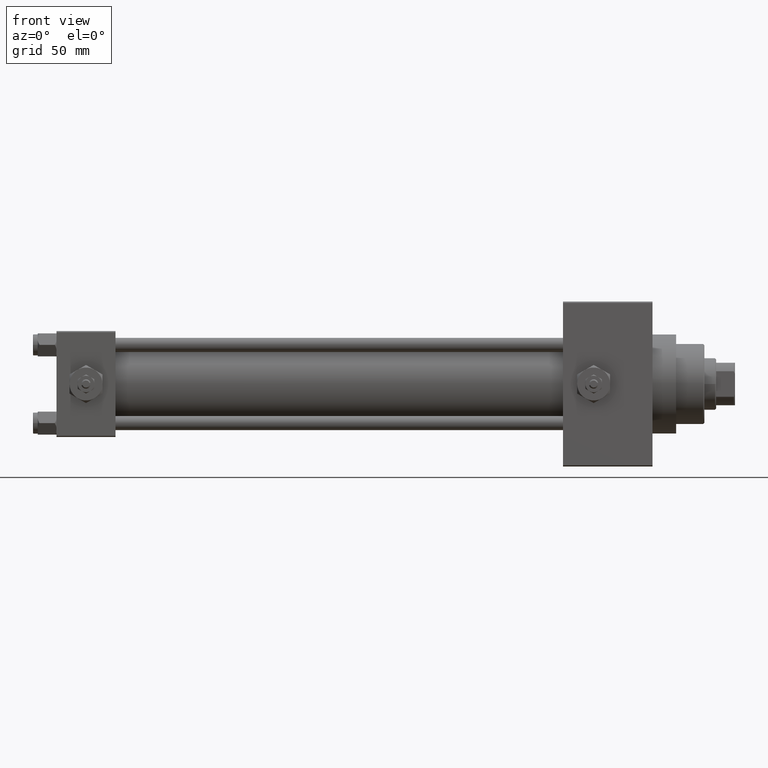
[diagram: clean part render]
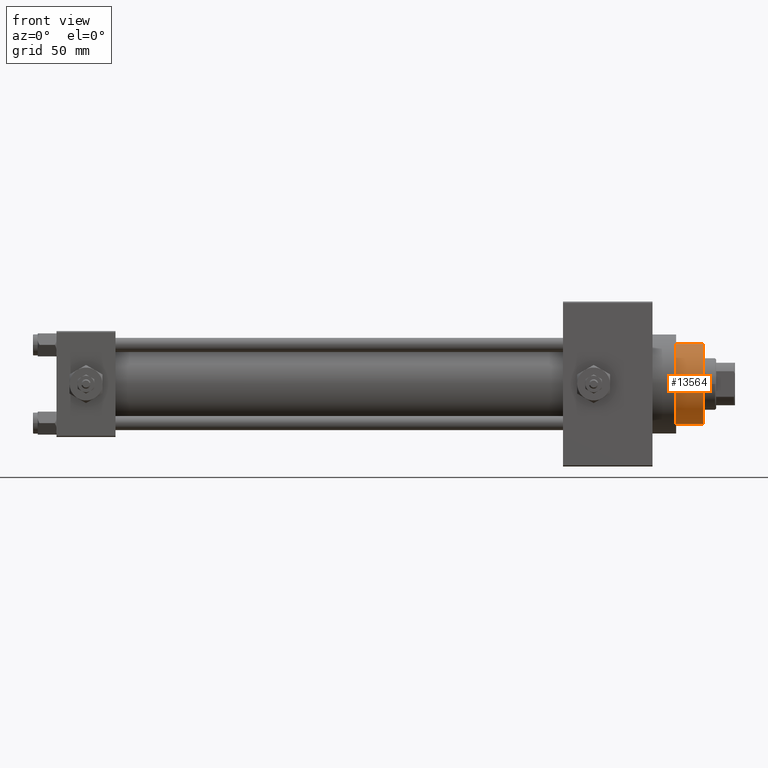
[diagram: same view with one face highlighted and labeled with its STEP entity id]
A machine part, front view. The second image highlights one B-rep face of the part: STEP entity #13564.
In plain terms, the highlighted cylindrical surface (partial cylindrical patch) has radius 17 mm, axis along (-1, 0, 0).
Its self-contained STEP definition (entity closure, byte-faithful):
#1362 = CARTESIAN_POINT ( 'NONE',  ( 0.000000000000000000, 0.000000000000000000, 54.76000000000001222 ) ) ;
#1388 = ORIENTED_EDGE ( 'NONE', *, *, #29258, .F. ) ;
#3139 = ORIENTED_EDGE ( 'NONE', *, *, #15464, .T. ) ;
#6447 = LINE ( 'NONE', #13409, #36582 ) ;
#6567 = CARTESIAN_POINT ( 'NONE',  ( 17.00000000000000000, 2.081899558550500280E-15, 55.26000000000000512 ) ) ;
#8528 = EDGE_CURVE ( 'NONE', #38916, #42596, #39174, .T. ) ;
#10540 = DIRECTION ( 'NONE',  ( -0.000000000000000000, -0.000000000000000000, -1.000000000000000000 ) ) ;
#11785 = DIRECTION ( 'NONE',  ( -0.000000000000000000, -0.000000000000000000, -1.000000000000000000 ) ) ;
#11865 = CARTESIAN_POINT ( 'NONE',  ( 0.000000000000000000, 0.000000000000000000, 43.25999999999999801 ) ) ;
#13003 = DIRECTION ( 'NONE',  ( 0.000000000000000000, 0.000000000000000000, -1.000000000000000000 ) ) ;
#13384 = EDGE_CURVE ( 'NONE', #42596, #41409, #17986, .T. ) ;
#13409 = CARTESIAN_POINT ( 'NONE',  ( -17.00000000000000000, 0.000000000000000000, 55.26000000000000512 ) ) ;
#13564 = ADVANCED_FACE ( 'NONE', ( #15496 ), #46043, .T. ) ;
#15464 = EDGE_CURVE ( 'NONE', #41409, #25181, #32969, .T. ) ;
#15496 = FACE_OUTER_BOUND ( 'NONE', #41815, .T. ) ;
#17218 = CARTESIAN_POINT ( 'NONE',  ( 17.00000000000000000, 2.081899558550500280E-15, 43.25999999999999801 ) ) ;
#17406 = CARTESIAN_POINT ( 'NONE',  ( -17.00000000000000000, 0.000000000000000000, 54.76000000000001222 ) ) ;
#17861 = DIRECTION ( 'NONE',  ( -0.000000000000000000, -0.000000000000000000, -1.000000000000000000 ) ) ;
#17986 = LINE ( 'NONE', #6567, #25081 ) ;
#19293 = DIRECTION ( 'NONE',  ( 0.000000000000000000, 0.000000000000000000, 1.000000000000000000 ) ) ;
#19706 = CARTESIAN_POINT ( 'NONE',  ( 0.000000000000000000, 0.000000000000000000, 55.26000000000000512 ) ) ;
#19716 = DIRECTION ( 'NONE',  ( 1.000000000000000000, 0.000000000000000000, 0.000000000000000000 ) ) ;
#20028 = DIRECTION ( 'NONE',  ( 1.000000000000000000, 0.000000000000000000, 0.000000000000000000 ) ) ;
#25081 = VECTOR ( 'NONE', #10540, 1000.000000000000000 ) ;
#25181 = VERTEX_POINT ( 'NONE', #47582 ) ;
#26440 = DIRECTION ( 'NONE',  ( -1.000000000000000000, 0.000000000000000000, 0.000000000000000000 ) ) ;
#29258 = EDGE_CURVE ( 'NONE', #38916, #25181, #6447, .T. ) ;
#31059 = ORIENTED_EDGE ( 'NONE', *, *, #8528, .T. ) ;
#31460 = AXIS2_PLACEMENT_3D ( 'NONE', #19706, #11785, #26440 ) ;
#32969 = CIRCLE ( 'NONE', #36936, 17.00000000000000000 ) ;
#34631 = CARTESIAN_POINT ( 'NONE',  ( 17.00000000000000000, 2.081899558550500280E-15, 54.76000000000001222 ) ) ;
#36582 = VECTOR ( 'NONE', #17861, 1000.000000000000000 ) ;
#36936 = AXIS2_PLACEMENT_3D ( 'NONE', #11865, #19293, #20028 ) ;
#38916 = VERTEX_POINT ( 'NONE', #17406 ) ;
#39174 = CIRCLE ( 'NONE', #47867, 17.00000000000000000 ) ;
#41409 = VERTEX_POINT ( 'NONE', #17218 ) ;
#41815 = EDGE_LOOP ( 'NONE', ( #31059, #42492, #3139, #1388 ) ) ;
#42492 = ORIENTED_EDGE ( 'NONE', *, *, #13384, .T. ) ;
#42596 = VERTEX_POINT ( 'NONE', #34631 ) ;
#46043 = CYLINDRICAL_SURFACE ( 'NONE', #31460, 17.00000000000000000 ) ;
#47582 = CARTESIAN_POINT ( 'NONE',  ( -17.00000000000000000, 0.000000000000000000, 43.25999999999999801 ) ) ;
#47867 = AXIS2_PLACEMENT_3D ( 'NONE', #1362, #13003, #19716 ) ;